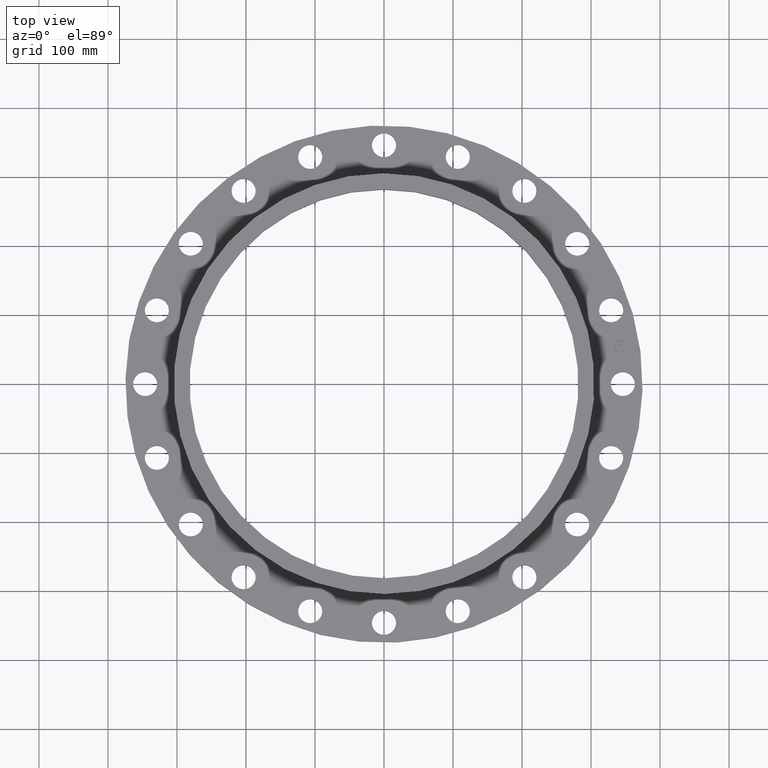
[diagram: clean part render]
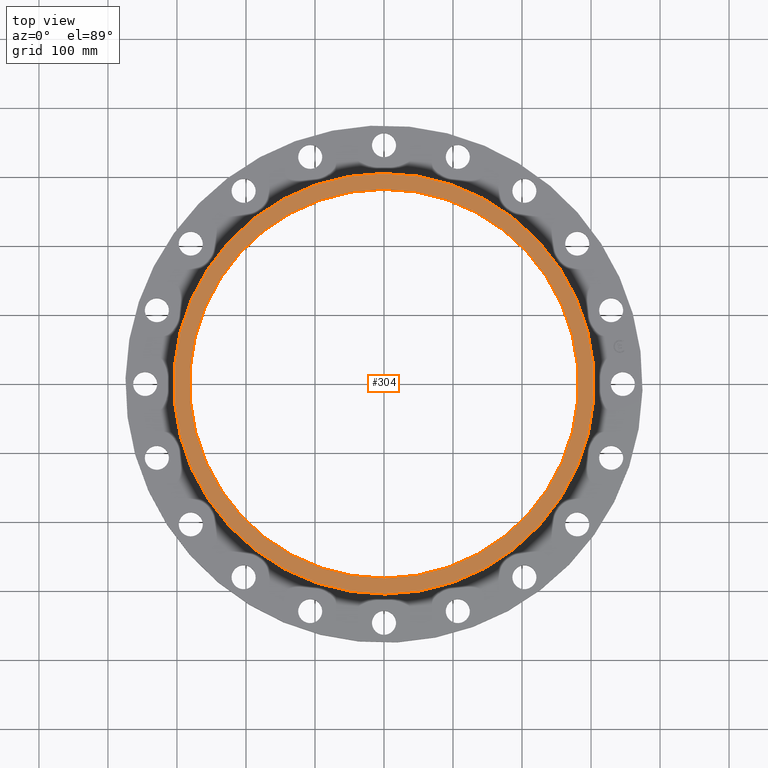
[diagram: same view with one face highlighted and labeled with its STEP entity id]
A machine part, top view. The second image highlights one B-rep face of the part: STEP entity #304.
In plain terms, the highlighted planar face has unit normal (0, 0, 1).
Its self-contained STEP definition (entity closure, byte-faithful):
#255=AXIS2_PLACEMENT_3D('Circle Axis2P3D',#253,#254,$) ;
#267=AXIS2_PLACEMENT_3D('Circle Axis2P3D',#265,#266,$) ;
#280=AXIS2_PLACEMENT_3D('Plane Axis2P3D',#277,#278,#279) ;
#284=AXIS2_PLACEMENT_3D('Circle Axis2P3D',#282,#283,$) ;
#293=AXIS2_PLACEMENT_3D('Circle Axis2P3D',#291,#292,$) ;
#243=CARTESIAN_POINT('Vertex',(5.31922635083,-9.73677852421,1.75000000001)) ;
#250=CARTESIAN_POINT('Vertex',(-5.31922635083,9.73677852421,1.75000000001)) ;
#253=CARTESIAN_POINT('Axis2P3D Location',(0.,0.,1.75000000001)) ;
#265=CARTESIAN_POINT('Axis2P3D Location',(0.,0.,1.75000000001)) ;
#277=CARTESIAN_POINT('Axis2P3D Location',(0.,11.095,1.75000000001)) ;
#282=CARTESIAN_POINT('Axis2P3D Location',(0.,0.,1.75000000001)) ;
#286=CARTESIAN_POINT('Vertex',(5.75310646327,-10.5309907427,1.75000000001)) ;
#288=CARTESIAN_POINT('Vertex',(-5.75310646327,10.5309907427,1.75000000001)) ;
#291=CARTESIAN_POINT('Axis2P3D Location',(0.,0.,1.75000000001)) ;
#254=DIRECTION('Axis2P3D Direction',(0.,0.,0.0393700787402)) ;
#266=DIRECTION('Axis2P3D Direction',(0.,0.,0.0393700787402)) ;
#278=DIRECTION('Axis2P3D Direction',(0.,0.,0.0393700787402)) ;
#279=DIRECTION('Axis2P3D XDirection',(0.0393700787402,0.,0.)) ;
#283=DIRECTION('Axis2P3D Direction',(0.,0.,0.0393700787402)) ;
#292=DIRECTION('Axis2P3D Direction',(0.,0.,0.0393700787402)) ;
#297=ORIENTED_EDGE('',*,*,#290,.T.) ;
#298=ORIENTED_EDGE('',*,*,#295,.T.) ;
#301=ORIENTED_EDGE('',*,*,#257,.F.) ;
#302=ORIENTED_EDGE('',*,*,#269,.F.) ;
#303=FACE_BOUND('',#300,.T.) ;
#304=ADVANCED_FACE('PartBody',(#299,#303),#281,.T.) ;
#256=CIRCLE('generated circle',#255,11.095) ;
#268=CIRCLE('generated circle',#267,11.095) ;
#285=CIRCLE('generated circle',#284,12.) ;
#294=CIRCLE('generated circle',#293,12.) ;
#257=EDGE_CURVE('',#251,#244,#256,.T.) ;
#269=EDGE_CURVE('',#244,#251,#268,.T.) ;
#290=EDGE_CURVE('',#287,#289,#285,.T.) ;
#295=EDGE_CURVE('',#289,#287,#294,.T.) ;
#296=EDGE_LOOP('',(#297,#298)) ;
#300=EDGE_LOOP('',(#301,#302)) ;
#299=FACE_OUTER_BOUND('',#296,.T.) ;
#281=PLANE('',#280) ;
#244=VERTEX_POINT('',#243) ;
#251=VERTEX_POINT('',#250) ;
#287=VERTEX_POINT('',#286) ;
#289=VERTEX_POINT('',#288) ;